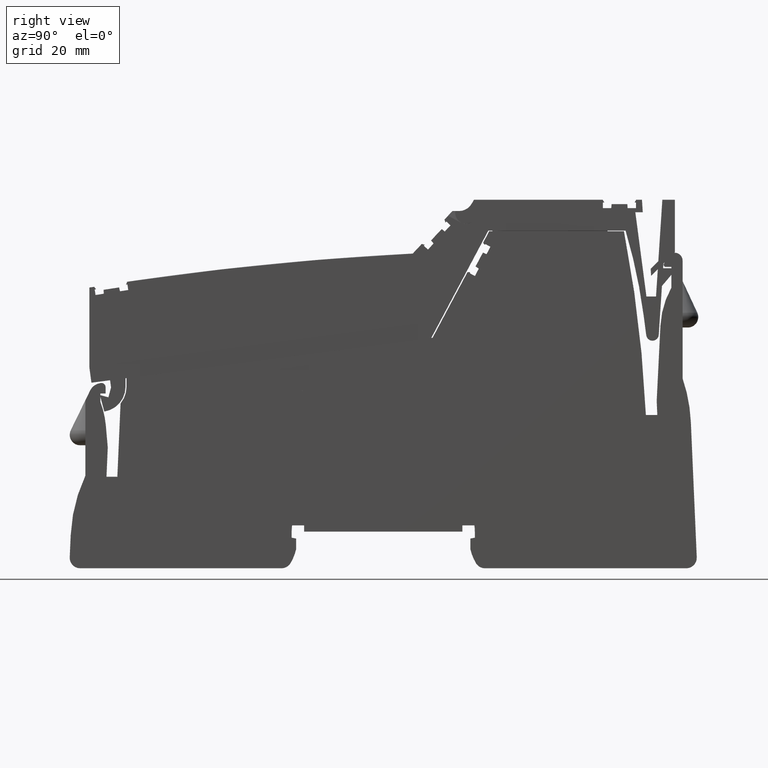
[diagram: clean part render]
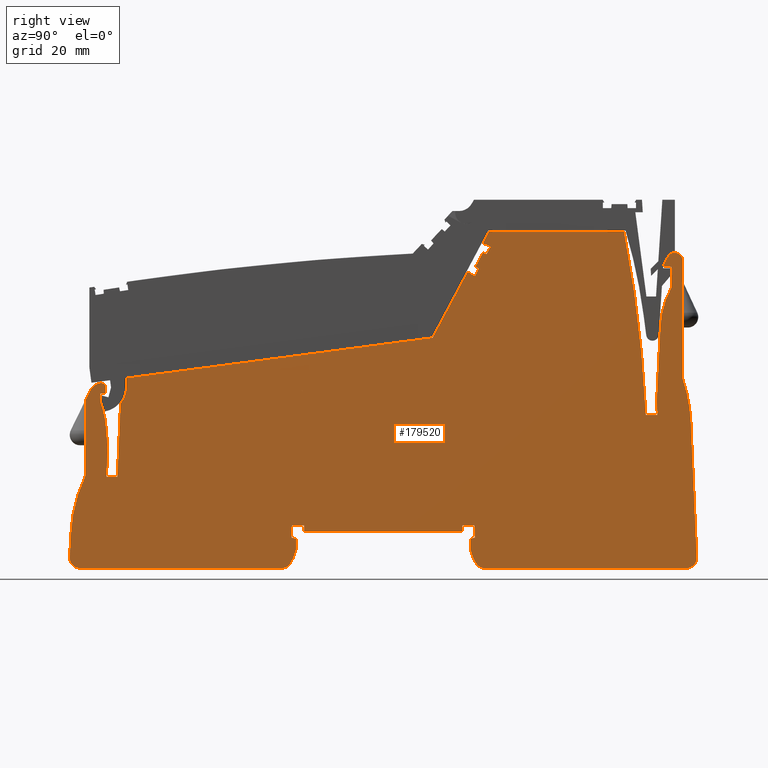
[diagram: same view with one face highlighted and labeled with its STEP entity id]
A machine part, right view. The second image highlights one B-rep face of the part: STEP entity #179520.
In plain terms, the highlighted planar face has unit normal (1, -0, -0).
Its self-contained STEP definition (entity closure, byte-faithful):
#173810=CARTESIAN_POINT('',(250.551745894944,-13.6190661492394,36.45));
#173820=DIRECTION('',(-0.,0.,1.));
#173830=DIRECTION('',(1.,-1.05193631583234E-14,0.));
#173840=AXIS2_PLACEMENT_3D('',#173810,#173820,#173830);
#173850=PLANE('',#173840);
#173860=CARTESIAN_POINT('',(222.829193999581,-62.4038624519245,36.45));
#173870=DIRECTION('',(-0.469471562785816,-0.882947592858967,
1.05168214005968E-44));
#173880=VECTOR('',#173870,1.);
#173890=LINE('',#173860,#173880);
#173900=CARTESIAN_POINT('',(252.619553665123,-6.3763446167434,36.45));
#173910=VERTEX_POINT('',#173900);
#173920=CARTESIAN_POINT('',(245.956559916687,-18.9076132978659,36.45));
#173930=VERTEX_POINT('',#173920);
#173940=EDGE_CURVE('',#173910,#173930,#173890,.T.);
#173950=ORIENTED_EDGE('',*,*,#173940,.T.);
#173960=CARTESIAN_POINT('',(217.456642799385,-7.60426052174302,36.45));
#173970=DIRECTION('',(-0.999390827019097,-0.0348994967024531,
4.15689194646281E-46));
#173980=VECTOR('',#173970,1.);
#173990=LINE('',#173960,#173980);
#174000=CARTESIAN_POINT('',(252.971522788557,-6.36405358411578,36.45));
#174010=VERTEX_POINT('',#174000);
#174020=EDGE_CURVE('',#174010,#173910,#173990,.T.);
#174030=ORIENTED_EDGE('',*,*,#174020,.T.);
#174040=CARTESIAN_POINT('',(252.976757713062,-6.51396220816862,36.45));
#174050=DIRECTION('',(0.,1.19110369467609E-44,1.));
#174060=DIRECTION('',(1.,1.05193631583234E-14,-1.25296523235185E-58));
#174070=AXIS2_PLACEMENT_3D('',#174040,#174050,#174060);
#174080=CIRCLE('',#174070,0.149999999999978);
#174090=CARTESIAN_POINT('',(253.109199851991,-6.58438294258651,36.45));
#174100=VERTEX_POINT('',#174090);
#174110=EDGE_CURVE('',#174100,#174010,#174080,.T.);
#174120=ORIENTED_EDGE('',*,*,#174110,.T.);
#174130=CARTESIAN_POINT('',(223.429456126324,-62.4038624519245,36.45));
#174140=DIRECTION('',(0.469471562787342,0.882947592858155,
-1.05168214005871E-44));
#174150=VECTOR('',#174140,1.);
#174160=LINE('',#174130,#174150);
#174170=CARTESIAN_POINT('',(253.103331457456,-6.59541978749719,36.45));
#174180=VERTEX_POINT('',#174170);
#174190=EDGE_CURVE('',#174180,#174100,#174160,.T.);
#174200=ORIENTED_EDGE('',*,*,#174190,.T.);
#174210=CARTESIAN_POINT('',(217.456642799385,12.3582607794984,36.45));
#174220=DIRECTION('',(-0.882947592858936,0.469471562785873,
-5.59189312979613E-45));
#174230=VECTOR('',#174220,1.);
#174240=LINE('',#174210,#174230);
#174250=CARTESIAN_POINT('',(254.048085381815,-7.09775435967803,36.45));
#174260=VERTEX_POINT('',#174250);
#174270=EDGE_CURVE('',#174260,#174180,#174240,.T.);
#174280=ORIENTED_EDGE('',*,*,#174270,.T.);
#174290=CARTESIAN_POINT('',(224.641306080665,-62.4038624519244,36.45));
#174300=DIRECTION('',(-0.469471562786055,-0.88294759285884,
1.05168214005953E-44));
#174310=VECTOR('',#174300,1.);
#174320=LINE('',#174290,#174310);
#174330=CARTESIAN_POINT('',(254.797776775253,-5.68778991519738,36.45));
#174340=VERTEX_POINT('',#174330);
#174350=EDGE_CURVE('',#174340,#174260,#174320,.T.);
#174360=ORIENTED_EDGE('',*,*,#174350,.T.);
#174370=CARTESIAN_POINT('',(217.456642799385,18.5618260273502,36.45));
#174380=DIRECTION('',(0.838670567945287,-0.544639035015238,
6.48721566871473E-45));
#174390=VECTOR('',#174380,1.);
#174400=LINE('',#174370,#174390);
#174410=CARTESIAN_POINT('',(254.166371160303,-5.27775031446077,36.45));
#174420=VERTEX_POINT('',#174410);
#174430=EDGE_CURVE('',#174420,#174340,#174400,.T.);
#174440=ORIENTED_EDGE('',*,*,#174430,.T.);
#174450=CARTESIAN_POINT('',(223.791878542665,-62.4038624519245,36.45));
#174460=DIRECTION('',(-0.469471562785848,-0.88294759285895,
1.05168214005966E-44));
#174470=VECTOR('',#174460,1.);
#174480=LINE('',#174450,#174470);
#174490=CARTESIAN_POINT('',(255.57478584866,-2.62890753588397,36.45));
#174500=VERTEX_POINT('',#174490);
#174510=EDGE_CURVE('',#174500,#174420,#174480,.T.);
#174520=ORIENTED_EDGE('',*,*,#174510,.T.);
#174530=CARTESIAN_POINT('',(217.456642799385,13.551284229208,36.45));
#174540=DIRECTION('',(-0.920504853452444,0.390731128489265,
-4.65401290768523E-45));
#174550=VECTOR('',#174540,1.);
#174560=LINE('',#174530,#174550);
#174570=CARTESIAN_POINT('',(256.267801622998,-2.92307527932637,36.45));
#174580=VERTEX_POINT('',#174570);
#174590=EDGE_CURVE('',#174580,#174500,#174560,.T.);
#174600=ORIENTED_EDGE('',*,*,#174590,.T.);
#174610=CARTESIAN_POINT('',(224.641306080672,-62.4038624519244,36.45));
#174620=DIRECTION('',(-0.469471562785964,-0.882947592858888,
1.05168214005959E-44));
#174630=VECTOR('',#174620,1.);
#174640=LINE('',#174610,#174630);
#174650=CARTESIAN_POINT('',(257.017493016436,-1.51311083484534,36.45));
#174660=VERTEX_POINT('',#174650);
#174670=EDGE_CURVE('',#174660,#174580,#174640,.T.);
#174680=ORIENTED_EDGE('',*,*,#174670,.T.);
#174690=CARTESIAN_POINT('',(217.456642799385,19.5217663500998,36.45));
#174700=DIRECTION('',(0.882947592859,-0.469471562785753,
5.59189312979471E-45));
#174710=VECTOR('',#174700,1.);
#174720=LINE('',#174690,#174710);
#174730=CARTESIAN_POINT('',(256.072739092077,-1.01077626266459,36.45));
#174740=VERTEX_POINT('',#174730);
#174750=EDGE_CURVE('',#174740,#174660,#174720,.T.);
#174760=ORIENTED_EDGE('',*,*,#174750,.T.);
#174770=CARTESIAN_POINT('',(223.429456126156,-62.4038624519245,36.45));
#174780=DIRECTION('',(0.469471562789092,0.882947592857225,
-1.0516821400576E-44));
#174790=VECTOR('',#174780,1.);
#174800=LINE('',#174770,#174790);
#174810=CARTESIAN_POINT('',(256.066870697542,-1.02181310757526,36.45));
#174820=VERTEX_POINT('',#174810);
#174830=EDGE_CURVE('',#174820,#174740,#174800,.T.);
#174840=ORIENTED_EDGE('',*,*,#174830,.T.);
#174850=CARTESIAN_POINT('',(255.934428558613,-0.951392373157361,36.45));
#174860=DIRECTION('',(0.,1.19110369467609E-44,1.));
#174870=DIRECTION('',(1.,1.05193631583234E-14,-1.25296523235185E-58));
#174880=AXIS2_PLACEMENT_3D('',#174850,#174860,#174870);
#174890=CIRCLE('',#174880,0.150000000000037);
#174900=CARTESIAN_POINT('',(255.80722134419,-1.03088026279237,36.45));
#174910=VERTEX_POINT('',#174900);
#174920=EDGE_CURVE('',#174910,#174820,#174890,.T.);
#174930=ORIENTED_EDGE('',*,*,#174920,.T.);
#174940=CARTESIAN_POINT('',(294.157316949414,-62.4038624519237,36.45));
#174950=DIRECTION('',(0.529919264232796,-0.848048096156682,
1.01011322059525E-44));
#174960=VECTOR('',#174950,1.);
#174970=LINE('',#174940,#174960);
#174980=CARTESIAN_POINT('',(255.620592435979,-0.732211576865332,36.45));
#174990=VERTEX_POINT('',#174980);
#175000=EDGE_CURVE('',#174990,#174910,#174970,.T.);
#175010=ORIENTED_EDGE('',*,*,#175000,.T.);
#175020=CARTESIAN_POINT('',(222.829193999575,-62.4038624519245,36.45));
#175030=DIRECTION('',(-0.469471562785901,-0.882947592858922,
1.05168214005963E-44));
#175040=VECTOR('',#175030,1.);
#175050=LINE('',#175020,#175040);
#175060=CARTESIAN_POINT('',(256.778620208859,1.44572190319565,36.45));
#175070=VERTEX_POINT('',#175060);
#175080=EDGE_CURVE('',#175070,#174990,#175050,.T.);
#175090=ORIENTED_EDGE('',*,*,#175080,.T.);
#175100=CARTESIAN_POINT('',(217.456642799385,1.44572190319565,36.45));
#175110=DIRECTION('',(-1.,0.,0.));
#175120=VECTOR('',#175110,1.);
#175130=LINE('',#175100,#175120);
#175140=CARTESIAN_POINT('',(282.529908005194,1.44572190319565,36.45));
#175150=VERTEX_POINT('',#175140);
#175160=EDGE_CURVE('',#175150,#175070,#175130,.T.);
#175170=ORIENTED_EDGE('',*,*,#175160,.T.);
#175180=CARTESIAN_POINT('',(42.7786202088592,-44.954278096795,36.45));
#175190=DIRECTION('',(0.,1.19110369467609E-44,1.));
#175200=DIRECTION('',(1.,1.05193631583234E-14,-1.25296523235185E-58));
#175210=AXIS2_PLACEMENT_3D('',#175180,#175190,#175200);
#175220=CIRCLE('',#175210,244.2);
#175230=CARTESIAN_POINT('',(286.717034567893,-33.6542780967924,36.45));
#175240=VERTEX_POINT('',#175230);
#175250=EDGE_CURVE('',#175240,#175150,#175220,.T.);
#175260=ORIENTED_EDGE('',*,*,#175250,.T.);
#175270=CARTESIAN_POINT('',(217.456642799386,-33.6542780967924,36.45));
#175280=DIRECTION('',(-1.,0.,0.));
#175290=VECTOR('',#175280,1.);
#175300=LINE('',#175270,#175290);
#175310=CARTESIAN_POINT('',(288.89935458164,-33.6542780967924,36.45));
#175320=VERTEX_POINT('',#175310);
#175330=EDGE_CURVE('',#175320,#175240,#175300,.T.);
#175340=ORIENTED_EDGE('',*,*,#175330,.T.);
#175350=CARTESIAN_POINT('',(290.154588542814,-62.4038624519238,36.45));
#175360=DIRECTION('',(0.0436193873653793,-0.999048221581856,
1.18997002788573E-44));
#175370=VECTOR('',#175360,1.);
#175380=LINE('',#175350,#175370);
#175390=CARTESIAN_POINT('',(288.781470035787,-30.9542780967934,36.45));
#175400=VERTEX_POINT('',#175390);
#175410=EDGE_CURVE('',#175400,#175320,#175380,.T.);
#175420=ORIENTED_EDGE('',*,*,#175410,.T.);
#175430=CARTESIAN_POINT('',(287.214385619435,-62.4038624519238,36.45));
#175440=DIRECTION('',(-0.0497667179338586,-0.99876086917044,
1.18962776136682E-44));
#175450=VECTOR('',#175440,1.);
#175460=LINE('',#175430,#175450);
#175470=CARTESIAN_POINT('',(289.495566915125,-16.6231739072968,36.45));
#175480=VERTEX_POINT('',#175470);
#175490=EDGE_CURVE('',#175480,#175400,#175460,.T.);
#175500=ORIENTED_EDGE('',*,*,#175490,.T.);
#175510=CARTESIAN_POINT('',(306.174873430273,-17.4542780967923,36.45));
#175520=DIRECTION('',(0.,1.19110369467609E-44,1.));
#175530=DIRECTION('',(1.,0.,0.));
#175540=AXIS2_PLACEMENT_3D('',#175510,#175520,#175530);
#175550=CIRCLE('',#175540,16.6999999999999);
#175560=CARTESIAN_POINT('',(291.578620208859,-9.34013045847767,36.45));
#175570=VERTEX_POINT('',#175560);
#175580=EDGE_CURVE('',#175570,#175480,#175550,.T.);
#175590=ORIENTED_EDGE('',*,*,#175580,.T.);
#175600=CARTESIAN_POINT('',(291.578620208859,-62.4038624519237,36.45));
#175610=DIRECTION('',(0.,-1.,1.19110369467609E-44));
#175620=VECTOR('',#175610,1.);
#175630=LINE('',#175600,#175620);
#175640=CARTESIAN_POINT('',(291.578620208859,-5.35427809679246,36.45));
#175650=VERTEX_POINT('',#175640);
#175660=EDGE_CURVE('',#175650,#175570,#175630,.T.);
#175670=ORIENTED_EDGE('',*,*,#175660,.T.);
#175680=CARTESIAN_POINT('',(217.456642799385,-5.35427809679246,36.45));
#175690=DIRECTION('',(1.,0.,0.));
#175700=VECTOR('',#175690,1.);
#175710=LINE('',#175680,#175700);
#175720=CARTESIAN_POINT('',(290.512594805074,-5.35427809679246,36.45));
#175730=VERTEX_POINT('',#175720);
#175740=EDGE_CURVE('',#175730,#175650,#175710,.T.);
#175750=ORIENTED_EDGE('',*,*,#175740,.T.);
#175760=CARTESIAN_POINT('',(290.512594805074,-4.95427809679246,36.45));
#175770=DIRECTION('',(0.,1.19110369467609E-44,1.));
#175780=DIRECTION('',(1.,0.,0.));
#175790=AXIS2_PLACEMENT_3D('',#175760,#175770,#175780);
#175800=CIRCLE('',#175790,0.4);
#175810=CARTESIAN_POINT('',(290.166184643561,-4.75427809679242,36.45));
#175820=VERTEX_POINT('',#175810);
#175830=EDGE_CURVE('',#175820,#175730,#175800,.T.);
#175840=ORIENTED_EDGE('',*,*,#175830,.T.);
#175850=CARTESIAN_POINT('',(256.88218159745,-62.4038624519241,36.45));
#175860=DIRECTION('',(-0.500000000000064,-0.866025403784402,
1.03152605813096E-44));
#175870=VECTOR('',#175860,1.);
#175880=LINE('',#175850,#175870);
#175890=CARTESIAN_POINT('',(290.948540359412,-3.39919824734572,36.45));
#175900=VERTEX_POINT('',#175890);
#175910=EDGE_CURVE('',#175900,#175820,#175880,.T.);
#175920=ORIENTED_EDGE('',*,*,#175910,.T.);
#175930=CARTESIAN_POINT('',(292.238779907752,-4.14411839789921,36.45));
#175940=DIRECTION('',(0.,1.19110369467609E-44,1.));
#175950=DIRECTION('',(1.,0.,0.));
#175960=AXIS2_PLACEMENT_3D('',#175930,#175940,#175950);
#175970=CIRCLE('',#175960,1.48984030110678);
#175980=CARTESIAN_POINT('',(293.728620208859,-4.14411839789921,36.45));
#175990=VERTEX_POINT('',#175980);
#176000=EDGE_CURVE('',#175990,#175900,#175970,.T.);
#176010=ORIENTED_EDGE('',*,*,#176000,.T.);
#176020=CARTESIAN_POINT('',(293.728620208859,-62.4038624519237,36.45));
#176030=DIRECTION('',(0.,1.,-1.19110369467609E-44));
#176040=VECTOR('',#176030,1.);
#176050=LINE('',#176020,#176040);
#176060=CARTESIAN_POINT('',(293.728620208859,-26.6633289582232,36.45));
#176070=VERTEX_POINT('',#176060);
#176080=EDGE_CURVE('',#176070,#175990,#176050,.T.);
#176090=ORIENTED_EDGE('',*,*,#176080,.T.);
#176100=CARTESIAN_POINT('',(265.338905386229,-36.3599310584282,36.45));
#176110=DIRECTION('',(0.,1.19110369467609E-44,1.));
#176120=DIRECTION('',(1.,0.,0.));
#176130=AXIS2_PLACEMENT_3D('',#176100,#176110,#176120);
#176140=CIRCLE('',#176130,29.9999999999995);
#176150=CARTESIAN_POINT('',(295.310352033684,-35.0513494374681,36.45));
#176160=VERTEX_POINT('',#176150);
#176170=EDGE_CURVE('',#176160,#176070,#176140,.T.);
#176180=ORIENTED_EDGE('',*,*,#176170,.T.);
#176190=CARTESIAN_POINT('',(296.504588542813,-62.4038624519237,36.45));
#176200=DIRECTION('',(-0.0436193873653358,0.999048221581858,
-1.18997002788573E-44));
#176210=VECTOR('',#176200,1.);
#176220=LINE('',#176190,#176210);
#176230=CARTESIAN_POINT('',(296.437489395879,-60.8670393220619,36.45));
#176240=VERTEX_POINT('',#176230);
#176250=EDGE_CURVE('',#176240,#176160,#176220,.T.);
#176260=ORIENTED_EDGE('',*,*,#176250,.T.);
#176270=CARTESIAN_POINT('',(294.439392952716,-60.9542780967925,36.45));
#176280=DIRECTION('',(0.,-1.19110369467609E-44,-1.));
#176290=DIRECTION('',(-1.,0.,0.));
#176300=AXIS2_PLACEMENT_3D('',#176270,#176280,#176290);
#176310=CIRCLE('',#176300,2.);
#176320=CARTESIAN_POINT('',(294.439392952716,-62.9542780967925,36.45));
#176330=VERTEX_POINT('',#176320);
#176340=EDGE_CURVE('',#176240,#176330,#176310,.T.);
#176350=ORIENTED_EDGE('',*,*,#176340,.F.);
#176360=CARTESIAN_POINT('',(217.456642799386,-62.9542780967925,36.45));
#176370=DIRECTION('',(1.,0.,0.));
#176380=VECTOR('',#176370,1.);
#176390=LINE('',#176360,#176380);
#176400=CARTESIAN_POINT('',(255.962554944728,-62.9542780967925,36.45));
#176410=VERTEX_POINT('',#176400);
#176420=EDGE_CURVE('',#176410,#176330,#176390,.T.);
#176430=ORIENTED_EDGE('',*,*,#176420,.T.);
#176440=CARTESIAN_POINT('',(255.962554944728,-60.9542780967925,36.45));
#176450=DIRECTION('',(0.,1.19110369467609E-44,1.));
#176460=DIRECTION('',(1.,0.,0.));
#176470=AXIS2_PLACEMENT_3D('',#176440,#176450,#176460);
#176480=CIRCLE('',#176470,2.);
#176490=CARTESIAN_POINT('',(254.238270874293,-61.9676114301258,36.45));
#176500=VERTEX_POINT('',#176490);
#176510=EDGE_CURVE('',#176500,#176410,#176480,.T.);
#176520=ORIENTED_EDGE('',*,*,#176510,.T.);
#176530=CARTESIAN_POINT('',(262.428620208859,-57.1542780967929,36.45));
#176540=DIRECTION('',(0.,1.19110369467609E-44,1.));
#176550=DIRECTION('',(1.,0.,0.));
#176560=AXIS2_PLACEMENT_3D('',#176530,#176540,#176550);
#176570=CIRCLE('',#176560,9.5);
#176580=CARTESIAN_POINT('',(253.178620208859,-59.3193416062542,36.45));
#176590=VERTEX_POINT('',#176580);
#176600=EDGE_CURVE('',#176590,#176500,#176570,.T.);
#176610=ORIENTED_EDGE('',*,*,#176600,.T.);
#176620=CARTESIAN_POINT('',(253.178620208859,-62.4038624519241,36.45));
#176630=DIRECTION('',(0.,-1.,1.19110369467609E-44));
#176640=VECTOR('',#176630,1.);
#176650=LINE('',#176620,#176640);
#176660=CARTESIAN_POINT('',(253.178620208859,-57.2709062822754,36.45));
#176670=VERTEX_POINT('',#176660);
#176680=EDGE_CURVE('',#176670,#176590,#176650,.T.);
#176690=ORIENTED_EDGE('',*,*,#176680,.T.);
#176700=CARTESIAN_POINT('',(217.456642799386,-64.2145552941398,36.45));
#176710=DIRECTION('',(-0.981627183447662,-0.190808995376554,
2.27273299370448E-45));
#176720=VECTOR('',#176710,1.);
#176730=LINE('',#176700,#176720);
#176740=CARTESIAN_POINT('',(254.028620208859,-57.1056830195084,36.45));
#176750=VERTEX_POINT('',#176740);
#176760=EDGE_CURVE('',#176750,#176670,#176730,.T.);
#176770=ORIENTED_EDGE('',*,*,#176760,.T.);
#176780=CARTESIAN_POINT('',(254.028620208859,-62.4038624519241,36.45));
#176790=DIRECTION('',(0.,-1.,1.19110369467609E-44));
#176800=VECTOR('',#176790,1.);
#176810=LINE('',#176780,#176800);
#176820=CARTESIAN_POINT('',(254.028620208859,-55.9542780967929,36.45));
#176830=VERTEX_POINT('',#176820);
#176840=EDGE_CURVE('',#176830,#176750,#176810,.T.);
#176850=ORIENTED_EDGE('',*,*,#176840,.T.);
#176860=CARTESIAN_POINT('',(245.528620208859,-55.9542780967929,36.45));
#176870=DIRECTION('',(0.,1.19110369467609E-44,1.));
#176880=DIRECTION('',(1.,1.05193631583234E-14,-1.25296523235185E-58));
#176890=AXIS2_PLACEMENT_3D('',#176860,#176870,#176880);
#176900=CIRCLE('',#176890,8.50000000000005);
#176910=CARTESIAN_POINT('',(253.943488003424,-54.7542780967928,36.45));
#176920=VERTEX_POINT('',#176910);
#176930=EDGE_CURVE('',#176830,#176920,#176900,.T.);
#176940=ORIENTED_EDGE('',*,*,#176930,.F.);
#176950=CARTESIAN_POINT('',(0.,-54.7542780967928,36.45));
#176960=DIRECTION('',(1.,1.49241151755498E-102,0.));
#176970=VECTOR('',#176960,1.);
#176980=LINE('',#176950,#176970);
#176990=CARTESIAN_POINT('',(251.653620208859,-54.7542780967928,36.45));
#177000=VERTEX_POINT('',#176990);
#177010=EDGE_CURVE('',#177000,#176920,#176980,.T.);
#177020=ORIENTED_EDGE('',*,*,#177010,.T.);
#177030=CARTESIAN_POINT('',(251.653620208859,-62.4038624519242,36.45));
#177040=DIRECTION('',(-1.05193631583234E-14,1.,-1.19110369467609E-44));
#177050=VECTOR('',#177040,1.);
#177060=LINE('',#177030,#177050);
#177070=CARTESIAN_POINT('',(251.653620208859,-55.9542780967928,36.45));
#177080=VERTEX_POINT('',#177070);
#177090=EDGE_CURVE('',#177080,#177000,#177060,.T.);
#177100=ORIENTED_EDGE('',*,*,#177090,.T.);
#177110=CARTESIAN_POINT('',(217.456642799386,-55.9542780967932,36.45));
#177120=DIRECTION('',(1.,1.05193631583234E-14,-1.25296523235185E-58));
#177130=VECTOR('',#177120,1.);
#177140=LINE('',#177110,#177130);
#177150=CARTESIAN_POINT('',(221.403620208859,-55.9542780967931,36.45));
#177160=VERTEX_POINT('',#177150);
#177170=EDGE_CURVE('',#177160,#177080,#177140,.T.);
#177180=ORIENTED_EDGE('',*,*,#177170,.T.);
#177190=CARTESIAN_POINT('',(221.403620208859,-62.4038624519245,36.45));
#177200=DIRECTION('',(1.05193631583234E-14,-1.,1.19110369467609E-44));
#177210=VECTOR('',#177200,1.);
#177220=LINE('',#177190,#177210);
#177230=CARTESIAN_POINT('',(221.403620208859,-54.7542780967931,36.45));
#177240=VERTEX_POINT('',#177230);
#177250=EDGE_CURVE('',#177240,#177160,#177220,.T.);
#177260=ORIENTED_EDGE('',*,*,#177250,.T.);
#177270=CARTESIAN_POINT('',(0.,-54.7542780967937,36.45));
#177280=DIRECTION('',(1.,1.49241151755498E-102,0.));
#177290=VECTOR('',#177280,1.);
#177300=LINE('',#177270,#177290);
#177310=CARTESIAN_POINT('',(219.113752414295,-54.7542780967937,36.45));
#177320=VERTEX_POINT('',#177310);
#177330=EDGE_CURVE('',#177320,#177240,#177300,.T.);
#177340=ORIENTED_EDGE('',*,*,#177330,.T.);
#177350=CARTESIAN_POINT('',(227.528620208859,-55.9542780967931,36.45));
#177360=DIRECTION('',(0.,1.19110369467609E-44,1.));
#177370=DIRECTION('',(1.,1.05193631583234E-14,-1.25296523235185E-58));
#177380=AXIS2_PLACEMENT_3D('',#177350,#177360,#177370);
#177390=CIRCLE('',#177380,8.49999999999999);
#177400=CARTESIAN_POINT('',(219.028620208859,-55.9542780967931,36.45));
#177410=VERTEX_POINT('',#177400);
#177420=EDGE_CURVE('',#177320,#177410,#177390,.T.);
#177430=ORIENTED_EDGE('',*,*,#177420,.F.);
#177440=CARTESIAN_POINT('',(219.028620208859,-62.4038624519245,36.45));
#177450=DIRECTION('',(0.,1.,-1.19110369467609E-44));
#177460=VECTOR('',#177450,1.);
#177470=LINE('',#177440,#177460);
#177480=CARTESIAN_POINT('',(219.028620208859,-57.1056830195087,36.45));
#177490=VERTEX_POINT('',#177480);
#177500=EDGE_CURVE('',#177490,#177410,#177470,.T.);
#177510=ORIENTED_EDGE('',*,*,#177500,.T.);
#177520=CARTESIAN_POINT('',(217.456642799386,-56.8001215646977,36.45));
#177530=DIRECTION('',(-0.98162718344766,0.190808995376566,
-2.27273299370461E-45));
#177540=VECTOR('',#177530,1.);
#177550=LINE('',#177520,#177540);
#177560=CARTESIAN_POINT('',(219.878620208859,-57.2709062822758,36.45));
#177570=VERTEX_POINT('',#177560);
#177580=EDGE_CURVE('',#177570,#177490,#177550,.T.);
#177590=ORIENTED_EDGE('',*,*,#177580,.T.);
#177600=CARTESIAN_POINT('',(219.878620208859,-62.4038624519245,36.45));
#177610=DIRECTION('',(0.,1.,-1.19110369467609E-44));
#177620=VECTOR('',#177610,1.);
#177630=LINE('',#177600,#177620);
#177640=CARTESIAN_POINT('',(219.878620208859,-59.3193416062538,36.45));
#177650=VERTEX_POINT('',#177640);
#177660=EDGE_CURVE('',#177650,#177570,#177630,.T.);
#177670=ORIENTED_EDGE('',*,*,#177660,.T.);
#177680=CARTESIAN_POINT('',(210.628620208859,-57.1542780967929,36.45));
#177690=DIRECTION('',(0.,-1.19110369467609E-44,-1.));
#177700=DIRECTION('',(-1.,0.,0.));
#177710=AXIS2_PLACEMENT_3D('',#177680,#177690,#177700);
#177720=CIRCLE('',#177710,9.5);
#177730=CARTESIAN_POINT('',(218.818969543425,-61.9676114301258,36.45));
#177740=VERTEX_POINT('',#177730);
#177750=EDGE_CURVE('',#177650,#177740,#177720,.T.);
#177760=ORIENTED_EDGE('',*,*,#177750,.F.);
#177770=CARTESIAN_POINT('',(217.09468547299,-60.9542780967925,36.45));
#177780=DIRECTION('',(0.,-1.19110369467609E-44,-1.));
#177790=DIRECTION('',(-1.,0.,0.));
#177800=AXIS2_PLACEMENT_3D('',#177770,#177780,#177790);
#177810=CIRCLE('',#177800,2.);
#177820=CARTESIAN_POINT('',(217.09468547299,-62.9542780967929,36.45));
#177830=VERTEX_POINT('',#177820);
#177840=EDGE_CURVE('',#177740,#177830,#177810,.T.);
#177850=ORIENTED_EDGE('',*,*,#177840,.F.);
#177860=CARTESIAN_POINT('',(217.456642799386,-62.9542780967929,36.45));
#177870=DIRECTION('',(1.,0.,0.));
#177880=VECTOR('',#177870,1.);
#177890=LINE('',#177860,#177880);
#177900=CARTESIAN_POINT('',(178.617847465003,-62.9542780967929,36.45));
#177910=VERTEX_POINT('',#177900);
#177920=EDGE_CURVE('',#177910,#177830,#177890,.T.);
#177930=ORIENTED_EDGE('',*,*,#177920,.T.);
#177940=CARTESIAN_POINT('',(178.617847465003,-60.9542780967929,36.45));
#177950=DIRECTION('',(0.,-1.19110369467609E-44,-1.));
#177960=DIRECTION('',(-1.,-1.05193631583234E-14,1.25296523235185E-58));
#177970=AXIS2_PLACEMENT_3D('',#177940,#177950,#177960);
#177980=CIRCLE('',#177970,2.);
#177990=CARTESIAN_POINT('',(176.619751021839,-60.8670393220622,36.45));
#178000=VERTEX_POINT('',#177990);
#178010=EDGE_CURVE('',#177910,#178000,#177980,.T.);
#178020=ORIENTED_EDGE('',*,*,#178010,.F.);
#178030=CARTESIAN_POINT('',(176.552651874906,-62.403862451925,36.45));
#178040=DIRECTION('',(-0.0436193873653827,-0.999048221581856,
1.18997002788573E-44));
#178050=VECTOR('',#178040,1.);
#178060=LINE('',#178030,#178050);
#178070=CARTESIAN_POINT('',(176.802689507967,-56.6770591260145,36.45));
#178080=VERTEX_POINT('',#178070);
#178090=EDGE_CURVE('',#178080,#178000,#178060,.T.);
#178100=ORIENTED_EDGE('',*,*,#178090,.T.);
#178110=CARTESIAN_POINT('',(206.774136155416,-57.9856407469757,36.45));
#178120=DIRECTION('',(0.,1.19110369467609E-44,1.));
#178130=DIRECTION('',(1.,0.,0.));
#178140=AXIS2_PLACEMENT_3D('',#178110,#178120,#178130);
#178150=CIRCLE('',#178140,29.9999999999933);
#178160=CARTESIAN_POINT('',(179.617847465003,-45.2366806104567,36.45));
#178170=VERTEX_POINT('',#178160);
#178180=EDGE_CURVE('',#178170,#178080,#178150,.T.);
#178190=ORIENTED_EDGE('',*,*,#178180,.T.);
#178200=CARTESIAN_POINT('',(179.617847465003,-62.4038624519249,36.45));
#178210=DIRECTION('',(0.,-1.,1.19110369467609E-44));
#178220=VECTOR('',#178210,1.);
#178230=LINE('',#178200,#178220);
#178240=CARTESIAN_POINT('',(179.617847465003,-30.8305420435832,36.45));
#178250=VERTEX_POINT('',#178240);
#178260=EDGE_CURVE('',#178250,#178170,#178230,.T.);
#178270=ORIENTED_EDGE('',*,*,#178260,.T.);
#178280=CARTESIAN_POINT('',(164.248217843791,-62.4038624519251,36.45));
#178290=DIRECTION('',(-0.437687596700824,-0.899127114313798,
1.07095362784262E-44));
#178300=VECTOR('',#178290,1.);
#178310=LINE('',#178280,#178300);
#178320=CARTESIAN_POINT('',(180.530802423075,-28.9550889506996,36.45));
#178330=VERTEX_POINT('',#178320);
#178340=EDGE_CURVE('',#178330,#178250,#178310,.T.);
#178350=ORIENTED_EDGE('',*,*,#178340,.T.);
#178360=CARTESIAN_POINT('',(182.778620208859,-30.0493079424516,36.45));
#178370=DIRECTION('',(0.,1.19110369467609E-44,1.));
#178380=DIRECTION('',(1.,0.,0.));
#178390=AXIS2_PLACEMENT_3D('',#178360,#178370,#178380);
#178400=CIRCLE('',#178390,2.5);
#178410=CARTESIAN_POINT('',(182.452304728309,-27.5706957890171,36.45));
#178420=VERTEX_POINT('',#178410);
#178430=EDGE_CURVE('',#178420,#178330,#178400,.T.);
#178440=ORIENTED_EDGE('',*,*,#178430,.T.);
#178450=CARTESIAN_POINT('',(217.456642799386,-22.9622872555666,36.45));
#178460=DIRECTION('',(-0.991444861373812,-0.130526192220044,
1.55470229805296E-45));
#178470=VECTOR('',#178460,1.);
#178480=LINE('',#178450,#178470);
#178490=CARTESIAN_POINT('',(182.574199255083,-27.554648070125,36.45));
#178500=VERTEX_POINT('',#178490);
#178510=EDGE_CURVE('',#178500,#178420,#178480,.T.);
#178520=ORIENTED_EDGE('',*,*,#178510,.T.);
#178530=CARTESIAN_POINT('',(182.678620208859,-28.3478039592241,36.45));
#178540=DIRECTION('',(0.,1.19110369467609E-44,1.));
#178550=DIRECTION('',(1.,0.,0.));
#178560=AXIS2_PLACEMENT_3D('',#178530,#178540,#178550);
#178570=CIRCLE('',#178560,0.8);
#178580=CARTESIAN_POINT('',(183.478620208859,-28.3478039592241,36.45));
#178590=VERTEX_POINT('',#178580);
#178600=EDGE_CURVE('',#178590,#178500,#178570,.T.);
#178610=ORIENTED_EDGE('',*,*,#178600,.T.);
#178620=CARTESIAN_POINT('',(183.478620208859,-62.4038624519249,36.45));
#178630=DIRECTION('',(0.,1.,-1.19110369467609E-44));
#178640=VECTOR('',#178630,1.);
#178650=LINE('',#178620,#178640);
#178660=CARTESIAN_POINT('',(183.478620208859,-29.5542780967957,36.45));
#178670=VERTEX_POINT('',#178660);
#178680=EDGE_CURVE('',#178670,#178590,#178650,.T.);
#178690=ORIENTED_EDGE('',*,*,#178680,.T.);
#178700=CARTESIAN_POINT('',(217.456642799386,-29.5542780967957,36.45));
#178710=DIRECTION('',(1.,0.,0.));
#178720=VECTOR('',#178710,1.);
#178730=LINE('',#178700,#178720);
#178740=CARTESIAN_POINT('',(182.478620208859,-29.5542780967957,36.45));
#178750=VERTEX_POINT('',#178740);
#178760=EDGE_CURVE('',#178750,#178670,#178730,.T.);
#178770=ORIENTED_EDGE('',*,*,#178760,.T.);
#178780=CARTESIAN_POINT('',(182.478620208859,-62.4038624519249,36.45));
#178790=DIRECTION('',(0.,1.,-1.19110369467609E-44));
#178800=VECTOR('',#178790,1.);
#178810=LINE('',#178780,#178800);
#178820=CARTESIAN_POINT('',(182.478620208859,-31.173998602455,36.45));
#178830=VERTEX_POINT('',#178820);
#178840=EDGE_CURVE('',#178830,#178750,#178810,.T.);
#178850=ORIENTED_EDGE('',*,*,#178840,.T.);
#178860=CARTESIAN_POINT('',(166.886113765894,-37.1542780968345,36.45));
#178870=DIRECTION('',(0.,1.19110369467609E-44,1.));
#178880=DIRECTION('',(1.,0.,0.));
#178890=AXIS2_PLACEMENT_3D('',#178860,#178870,#178880);
#178900=CIRCLE('',#178890,16.7000000001442);
#178910=CARTESIAN_POINT('',(183.522565224169,-35.6987771929366,36.45));
#178920=VERTEX_POINT('',#178910);
#178930=EDGE_CURVE('',#178920,#178830,#178900,.T.);
#178940=ORIENTED_EDGE('',*,*,#178930,.T.);
#178950=CARTESIAN_POINT('',(185.85895744282,-62.4038624519249,36.45));
#178960=DIRECTION('',(-0.0871557427476241,0.996194698091749,
-1.18657118551382E-44));
#178970=VECTOR('',#178960,1.);
#178980=LINE('',#178950,#178970);
#178990=CARTESIAN_POINT('',(183.886833925695,-39.8623875036679,36.45));
#179000=VERTEX_POINT('',#178990);
#179010=EDGE_CURVE('',#179000,#178920,#178980,.T.);
#179020=ORIENTED_EDGE('',*,*,#179010,.T.);
#179030=CARTESIAN_POINT('',(182.902651874904,-62.4038624519249,36.45));
#179040=DIRECTION('',(0.0436193873653772,0.999048221581856,
-1.18997002788573E-44));
#179050=VECTOR('',#179040,1.);
#179060=LINE('',#179030,#179050);
#179070=CARTESIAN_POINT('',(183.642686709758,-45.4542780967935,36.45));
#179080=VERTEX_POINT('',#179070);
#179090=EDGE_CURVE('',#179080,#179000,#179060,.T.);
#179100=ORIENTED_EDGE('',*,*,#179090,.T.);
#179110=CARTESIAN_POINT('',(217.456642799386,-45.4542780967935,36.45));
#179120=DIRECTION('',(-1.,0.,0.));
#179130=VECTOR('',#179120,1.);
#179140=LINE('',#179110,#179130);
#179150=CARTESIAN_POINT('',(185.720436069614,-45.4542780967935,36.45));
#179160=VERTEX_POINT('',#179150);
#179170=EDGE_CURVE('',#179160,#179080,#179140,.T.);
#179180=ORIENTED_EDGE('',*,*,#179170,.T.);
#179190=CARTESIAN_POINT('',(184.980401234762,-62.4038624519249,36.45));
#179200=DIRECTION('',(-0.043619387365336,-0.999048221581858,
1.18997002788573E-44));
#179210=VECTOR('',#179200,1.);
#179220=LINE('',#179190,#179210);
#179230=CARTESIAN_POINT('',(186.331435499458,-31.4600904054345,36.45));
#179240=VERTEX_POINT('',#179230);
#179250=EDGE_CURVE('',#179240,#179160,#179220,.T.);
#179260=ORIENTED_EDGE('',*,*,#179250,.T.);
#179270=CARTESIAN_POINT('',(182.478620208859,-28.2732715626829,36.45));
#179280=DIRECTION('',(0.,1.19110369467609E-44,1.));
#179290=DIRECTION('',(1.,1.05193631583234E-14,-1.25296523235185E-58));
#179300=AXIS2_PLACEMENT_3D('',#179270,#179280,#179290);
#179310=CIRCLE('',#179300,4.99999999999888);
#179320=CARTESIAN_POINT('',(187.478620208858,-28.2732715626828,36.45));
#179330=VERTEX_POINT('',#179320);
#179340=EDGE_CURVE('',#179240,#179330,#179310,.T.);
#179350=ORIENTED_EDGE('',*,*,#179340,.F.);
#179360=CARTESIAN_POINT('',(187.478620208858,-62.4038624519248,36.45));
#179370=DIRECTION('',(1.05193631583234E-14,-1.,1.19110369467609E-44));
#179380=VECTOR('',#179370,1.);
#179390=LINE('',#179360,#179380);
#179400=CARTESIAN_POINT('',(187.478620208858,-26.6063801141666,36.45));
#179410=VERTEX_POINT('',#179400);
#179420=EDGE_CURVE('',#179410,#179330,#179390,.T.);
#179430=ORIENTED_EDGE('',*,*,#179420,.T.);
#179440=CARTESIAN_POINT('',(217.456642799386,-22.6596985673923,36.45));
#179450=DIRECTION('',(0.991444861373811,0.13052619222005,
-1.55470229805303E-45));
#179460=VECTOR('',#179450,1.);
#179470=LINE('',#179440,#179460);
#179480=EDGE_CURVE('',#179410,#173930,#179470,.T.);
#179490=ORIENTED_EDGE('',*,*,#179480,.F.);
#179500=EDGE_LOOP('',(#179490,#179430,#179350,#179260,#179180,#179100,
#179020,#178940,#178850,#178770,#178690,#178610,#178520,#178440,#178350,
#178270,#178190,#178100,#178020,#177930,#177850,#177760,#177670,#177590,
#177510,#177430,#177340,#177260,#177180,#177100,#177020,#176940,#176850,
#176770,#176690,#176610,#176520,#176430,#176350,#176260,#176180,#176090,
#176010,#175920,#175840,#175750,#175670,#175590,#175500,#175420,#175340,
#175260,#175170,#175090,#175010,#174930,#174840,#174760,#174680,#174600,
#174520,#174440,#174360,#174280,#174200,#174120,#174030,#173950));
#179510=FACE_OUTER_BOUND('',#179500,.T.);
#179520=ADVANCED_FACE('',(#179510),#173850,.T.);